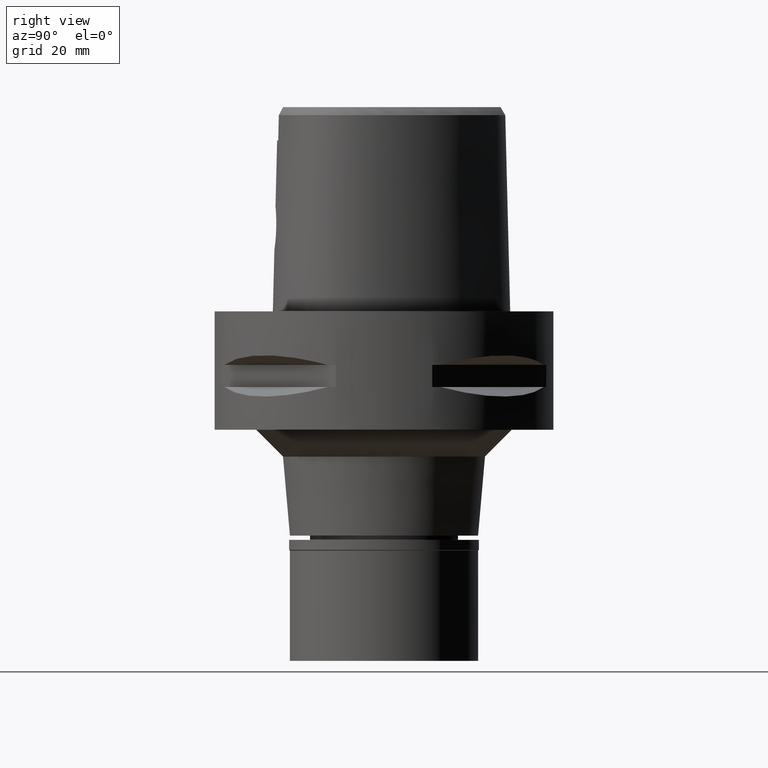
[diagram: clean part render]
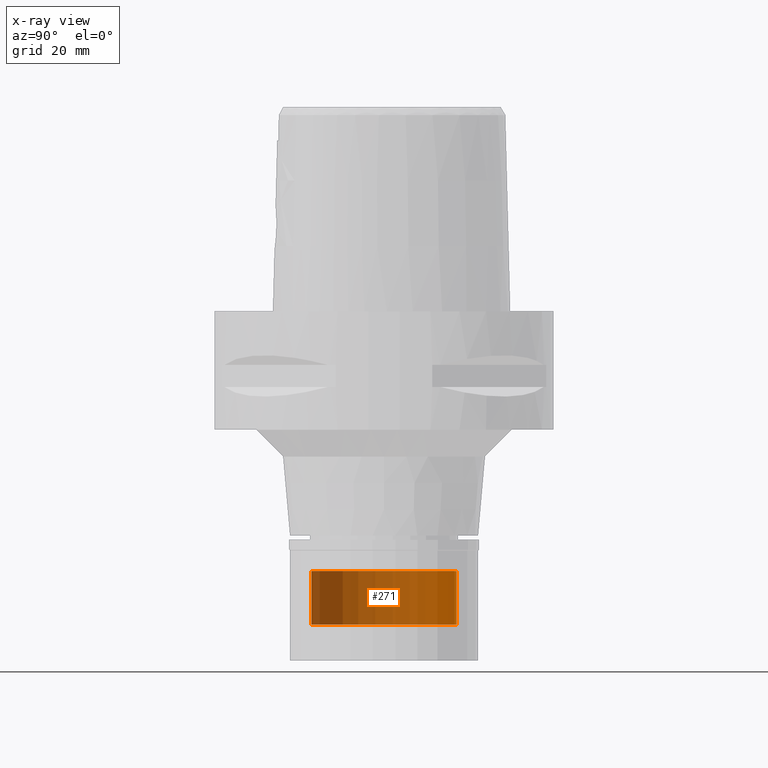
[diagram: x-ray — body ghosted, one internal face saturated and labeled with its STEP entity id]
A machine part, right view, then the same camera in x-ray: the body is ghosted and one INTERNAL B-rep face — a face not visible from any outside direction — is saturated and labeled: STEP entity #271.
In plain terms, the highlighted cylindrical surface (partial cylindrical patch) has radius 13.5 mm, axis along (0, 0, -1).
Its self-contained STEP definition (entity closure, byte-faithful):
#264 = DIRECTION ( 'NONE',  ( 0.0000000000000000000, -1.000000000000000000, 0.0000000000000000000 ) ) ;
#271 = ADVANCED_FACE ( 'NONE', ( #1052 ), #4022, .T. ) ;
#358 = VERTEX_POINT ( 'NONE', #2091 ) ;
#617 = AXIS2_PLACEMENT_3D ( 'NONE', #2526, #2145, #3620 ) ;
#751 = CARTESIAN_POINT ( 'NONE',  ( 0.0000000000000000000, 1.260345253342000041E-14, -58.29999999999999716 ) ) ;
#785 = CIRCLE ( 'NONE', #3798, 13.50000000000000000 ) ;
#969 = DIRECTION ( 'NONE',  ( 0.0000000000000000000, 0.0000000000000000000, -1.000000000000000000 ) ) ;
#1015 = EDGE_LOOP ( 'NONE', ( #3667, #1264, #3831, #2980 ) ) ;
#1021 = CARTESIAN_POINT ( 'NONE',  ( 0.0000000000000000000, -13.50000000000000000, -58.29999999999999716 ) ) ;
#1052 = FACE_OUTER_BOUND ( 'NONE', #1015, .T. ) ;
#1264 = ORIENTED_EDGE ( 'NONE', *, *, #4158, .F. ) ;
#1340 = CARTESIAN_POINT ( 'NONE',  ( 0.0000000000000000000, 1.260345253342000041E-14, -48.30000000000000426 ) ) ;
#1416 = CIRCLE ( 'NONE', #4128, 13.50000000000000000 ) ;
#1592 = DIRECTION ( 'NONE',  ( 0.0000000000000000000, 0.0000000000000000000, -1.000000000000000000 ) ) ;
#1666 = CARTESIAN_POINT ( 'NONE',  ( 0.0000000000000000000, 13.50000000000000000, -48.30000000000000426 ) ) ;
#1787 = VERTEX_POINT ( 'NONE', #1021 ) ;
#1982 = EDGE_CURVE ( 'NONE', #358, #3384, #785, .T. ) ;
#2091 = CARTESIAN_POINT ( 'NONE',  ( 0.0000000000000000000, -13.50000000000000000, -48.30000000000000426 ) ) ;
#2145 = DIRECTION ( 'NONE',  ( 0.0000000000000000000, 0.0000000000000000000, -1.000000000000000000 ) ) ;
#2496 = LINE ( 'NONE', #3147, #4209 ) ;
#2526 = CARTESIAN_POINT ( 'NONE',  ( 0.0000000000000000000, 1.260345253342000041E-14, 2.915000000000000036 ) ) ;
#2565 = VECTOR ( 'NONE', #1592, 1000.000000000000000 ) ;
#2625 = DIRECTION ( 'NONE',  ( 0.0000000000000000000, 0.0000000000000000000, 1.000000000000000000 ) ) ;
#2825 = VERTEX_POINT ( 'NONE', #3064 ) ;
#2980 = ORIENTED_EDGE ( 'NONE', *, *, #4540, .T. ) ;
#3013 = LINE ( 'NONE', #4511, #2565 ) ;
#3064 = CARTESIAN_POINT ( 'NONE',  ( 0.0000000000000000000, 13.50000000000000000, -58.29999999999999716 ) ) ;
#3147 = CARTESIAN_POINT ( 'NONE',  ( 0.0000000000000000000, 13.50000000000000000, -48.30000000000000426 ) ) ;
#3307 = DIRECTION ( 'NONE',  ( 0.0000000000000000000, 1.000000000000000000, 0.0000000000000000000 ) ) ;
#3384 = VERTEX_POINT ( 'NONE', #1666 ) ;
#3620 = DIRECTION ( 'NONE',  ( 0.0000000000000000000, -1.000000000000000000, 0.0000000000000000000 ) ) ;
#3667 = ORIENTED_EDGE ( 'NONE', *, *, #4006, .T. ) ;
#3798 = AXIS2_PLACEMENT_3D ( 'NONE', #1340, #4362, #264 ) ;
#3831 = ORIENTED_EDGE ( 'NONE', *, *, #1982, .T. ) ;
#4006 = EDGE_CURVE ( 'NONE', #2825, #1787, #1416, .T. ) ;
#4022 = CYLINDRICAL_SURFACE ( 'NONE', #617, 13.50000000000000000 ) ;
#4128 = AXIS2_PLACEMENT_3D ( 'NONE', #751, #2625, #3307 ) ;
#4158 = EDGE_CURVE ( 'NONE', #358, #1787, #3013, .T. ) ;
#4209 = VECTOR ( 'NONE', #969, 1000.000000000000000 ) ;
#4362 = DIRECTION ( 'NONE',  ( 0.0000000000000000000, 0.0000000000000000000, -1.000000000000000000 ) ) ;
#4511 = CARTESIAN_POINT ( 'NONE',  ( 0.0000000000000000000, -13.50000000000000000, -48.30000000000000426 ) ) ;
#4540 = EDGE_CURVE ( 'NONE', #3384, #2825, #2496, .T. ) ;